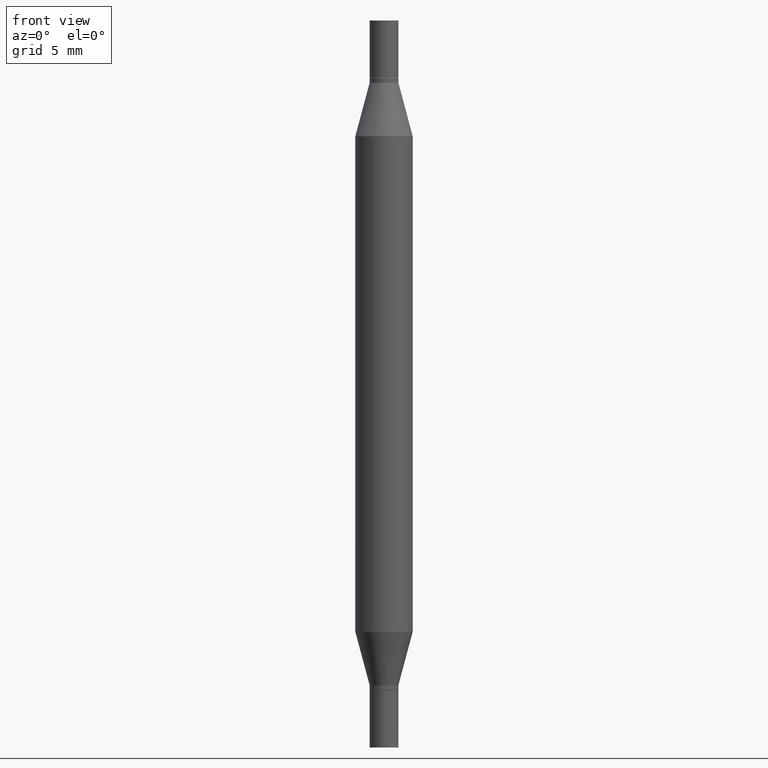
[diagram: clean part render]
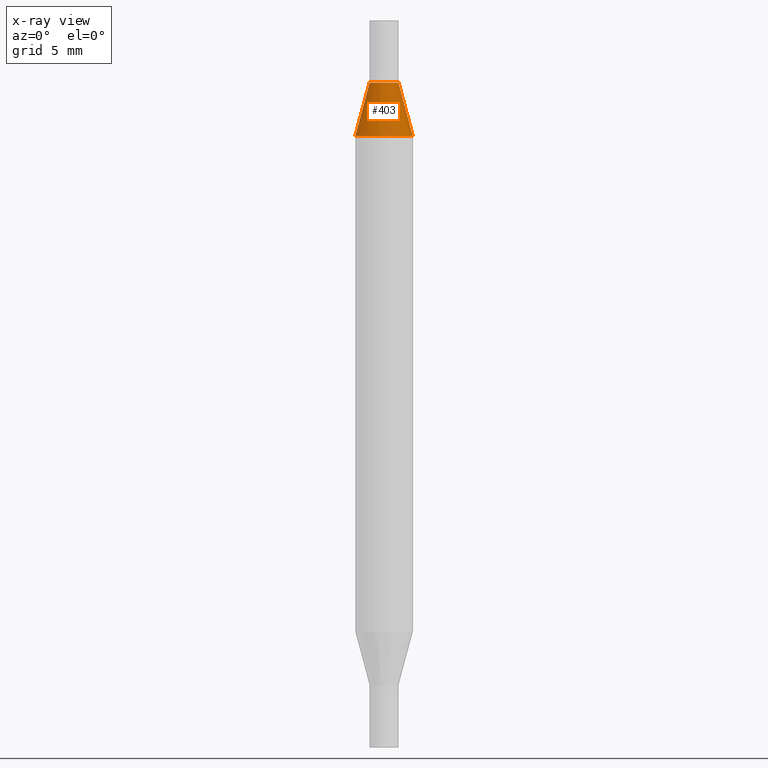
[diagram: x-ray — body ghosted, one internal face saturated and labeled with its STEP entity id]
A machine part, front view, then the same camera in x-ray: the body is ghosted and one INTERNAL B-rep face — a face not visible from any outside direction — is saturated and labeled: STEP entity #403.
In plain terms, the highlighted conical surface has half-angle 15 deg.
Its self-contained STEP definition (entity closure, byte-faithful):
#38 = VERTEX_POINT ( 'NONE', #397 ) ;
#47 = VERTEX_POINT ( 'NONE', #514 ) ;
#138 = ORIENTED_EDGE ( 'NONE', *, *, #769, .F. ) ;
#164 = CARTESIAN_POINT ( 'NONE',  ( 3.345645873741884627E-29, -4.467088663909703532E-16, -0.1280000000000001137 ) ) ;
#205 = CONICAL_SURFACE ( 'NONE', #476, 0.02954999999999991661, 0.2617993877991500740 ) ;
#220 = AXIS2_PLACEMENT_3D ( 'NONE', #639, #720, #289 ) ;
#238 = VECTOR ( 'NONE', #667, 39.37007874015747433 ) ;
#262 = EDGE_CURVE ( 'NONE', #47, #681, #767, .T. ) ;
#272 = EDGE_LOOP ( 'NONE', ( #975, #850, #675, #138 ) ) ;
#289 = DIRECTION ( 'NONE',  ( 1.000000000000000000, -6.982962677686265133E-15, 0.000000000000000000 ) ) ;
#375 = CARTESIAN_POINT ( 'NONE',  ( 0.02954999999999991661, -6.530554135165988789E-16, -0.1280000000000001137 ) ) ;
#381 = CARTESIAN_POINT ( 'NONE',  ( -0.05904999999999999832, -4.260284833459836245E-16, -0.2380954988232820146 ) ) ;
#397 = CARTESIAN_POINT ( 'NONE',  ( 0.05904999999999999832, -1.243484836231766624E-15, -0.2380954988232820146 ) ) ;
#403 = ADVANCED_FACE ( 'NONE', ( #749 ), #205, .T. ) ;
#436 = CARTESIAN_POINT ( 'NONE',  ( 3.345645873741884627E-29, -4.467088663909703532E-16, -0.1280000000000001137 ) ) ;
#471 = DIRECTION ( 'NONE',  ( -2.445468806185136597E-29, -3.491805094961124077E-15, -1.000000000000000000 ) ) ;
#476 = AXIS2_PLACEMENT_3D ( 'NONE', #164, #471, #683 ) ;
#514 = CARTESIAN_POINT ( 'NONE',  ( -0.02954999999999991661, -2.275696666105042854E-16, -0.1280000000000001137 ) ) ;
#523 = CIRCLE ( 'NONE', #220, 0.05904999999999999832 ) ;
#534 = DIRECTION ( 'NONE',  ( 1.000000000000000000, -6.982962677686265133E-15, 0.000000000000000000 ) ) ;
#564 = EDGE_CURVE ( 'NONE', #599, #38, #523, .T. ) ;
#599 = VERTEX_POINT ( 'NONE', #381 ) ;
#635 = EDGE_CURVE ( 'NONE', #47, #599, #671, .T. ) ;
#639 = CARTESIAN_POINT ( 'NONE',  ( 3.076410765668156654E-29, -8.311408901143919011E-16, -0.2380954988232820146 ) ) ;
#667 = DIRECTION ( 'NONE',  ( -0.2588190451025213501, -1.597197180879714326E-15, -0.9659258262890682012 ) ) ;
#670 = AXIS2_PLACEMENT_3D ( 'NONE', #436, #736, #534 ) ;
#671 = LINE ( 'NONE', #824, #238 ) ;
#675 = ORIENTED_EDGE ( 'NONE', *, *, #564, .T. ) ;
#681 = VERTEX_POINT ( 'NONE', #375 ) ;
#683 = DIRECTION ( 'NONE',  ( 1.000000000000000000, -6.982962677686265133E-15, 0.000000000000000000 ) ) ;
#684 = DIRECTION ( 'NONE',  ( 0.2588190451025213501, -5.180148453816008779E-15, -0.9659258262890682012 ) ) ;
#705 = CARTESIAN_POINT ( 'NONE',  ( 0.02954999999999991661, -6.530554135165988789E-16, -0.1280000000000001137 ) ) ;
#720 = DIRECTION ( 'NONE',  ( 2.445468806185136597E-29, 3.491805094961124077E-15, 1.000000000000000000 ) ) ;
#736 = DIRECTION ( 'NONE',  ( 2.445468806185136597E-29, 3.491805094961124077E-15, 1.000000000000000000 ) ) ;
#749 = FACE_OUTER_BOUND ( 'NONE', #272, .T. ) ;
#767 = CIRCLE ( 'NONE', #670, 0.02954999999999991661 ) ;
#769 = EDGE_CURVE ( 'NONE', #681, #38, #779, .T. ) ;
#779 = LINE ( 'NONE', #705, #841 ) ;
#824 = CARTESIAN_POINT ( 'NONE',  ( -0.02954999999999991661, -2.439811505568221169E-16, -0.1280000000000001137 ) ) ;
#841 = VECTOR ( 'NONE', #684, 39.37007874015747433 ) ;
#850 = ORIENTED_EDGE ( 'NONE', *, *, #635, .T. ) ;
#975 = ORIENTED_EDGE ( 'NONE', *, *, #262, .F. ) ;